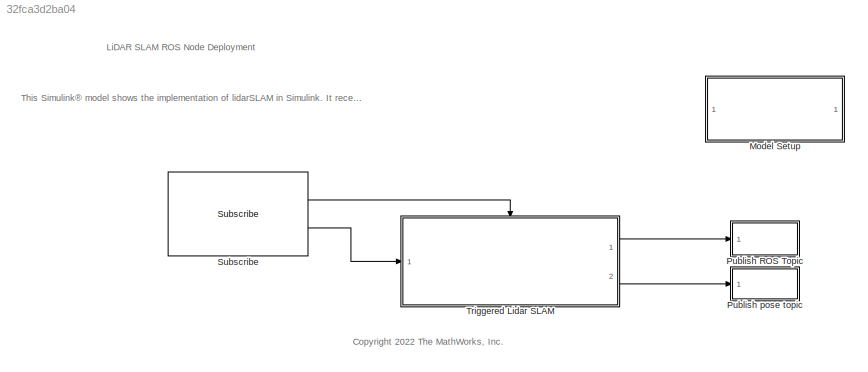
MODEL slx_32fca3d2ba04
KIND model
CONFIG AbsTol = auto
CONFIG EnableMultiTasking = off
CONFIG FixedStep = auto
CONFIG MaxStep = auto
CONFIG MinStep = auto
CONFIG RelTol = 1e-3
CONFIG SampleTimeConstraint = Unconstrained
CONFIG SolverName = FixedStepAuto
CONFIG StartTime = 0.0
CONFIG StopTime = inf
WORKSPACE source: mxarray member
WORKSPACE SL_ROS_VariableLengthArrays_MaxSizes: object (value not decoded)
BLOCK [SubSystem] Model Setup
  Ports = []
  RequestExecContextInheritance = off
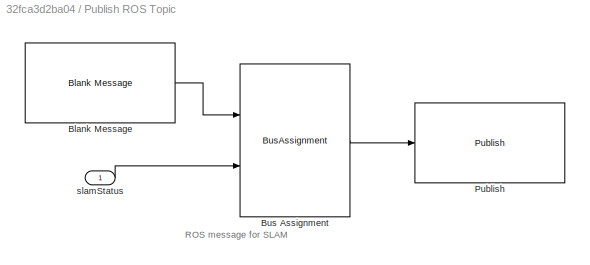
BLOCK [SubSystem] Publish ROS Topic
  Ports = [1]
  RequestExecContextInheritance = off
BLOCK [Reference] Publish ROS Topic/Blank Message  REF=robotlib/Blank Message
  Ports = [0, 1]
  SourceBlock = robotlib/Blank Message
  SourceProductBaseCode = RR
  SourceType = ROS Blank Message
BLOCK [BusAssignment] Publish ROS Topic/Bus Assignment
  AssignedSignals = Data
  Ports = [2, 1]
BLOCK [Reference] Publish ROS Topic/Publish  REF=robotlib/Publish
  Ports = [1]
  SourceBlock = robotlib/Publish
  SourceProductBaseCode = RR
  SourceType = ROS Publish
BLOCK [Inport] Publish ROS Topic/slamStatus
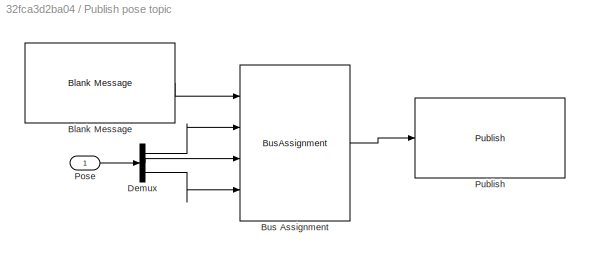
BLOCK [SubSystem] Publish pose topic
  Ports = [1]
  RequestExecContextInheritance = off
BLOCK [Reference] Publish pose topic/Blank Message  REF=robotlib/Blank Message
  Ports = [0, 1]
  SourceBlock = robotlib/Blank Message
  SourceProductBaseCode = RR
  SourceType = ROS Blank Message
BLOCK [BusAssignment] Publish pose topic/Bus Assignment
  AssignedSignals = X,Y,Theta
  Ports = [4, 1]
BLOCK [Demux] Publish pose topic/Demux
  Outputs = 3
  Ports = [1, 3]
BLOCK [Inport] Publish pose topic/Pose
  NameLocation = top
BLOCK [Reference] Publish pose topic/Publish  REF=robotlib/Publish
  Ports = [1]
  SourceBlock = robotlib/Publish
  SourceProductBaseCode = RR
  SourceType = ROS Publish
BLOCK [Reference] Subscribe  REF=robotlib/Subscribe
  Ports = [0, 2]
  SourceBlock = robotlib/Subscribe
  SourceProductBaseCode = RR
  SourceType = ROS Subscribe
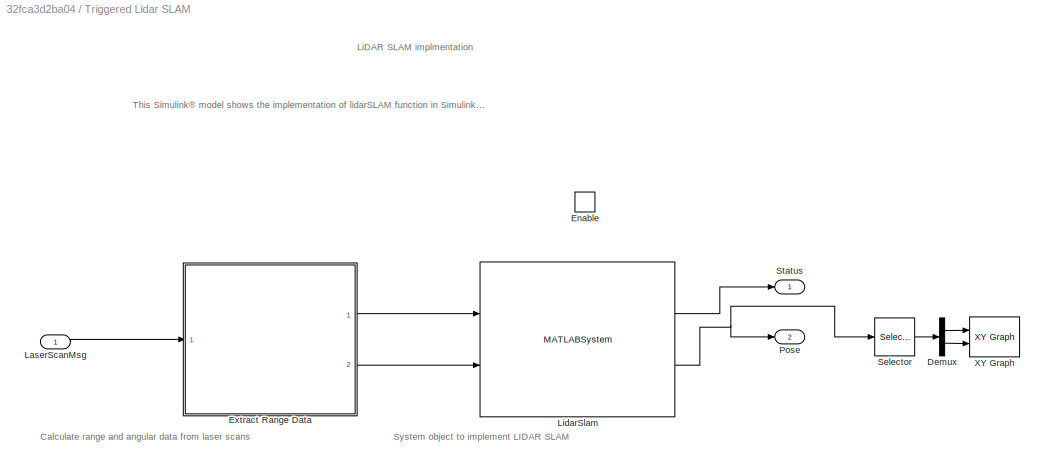
BLOCK [SubSystem] Triggered Lidar SLAM
  Ports = [1, 2, 1]
  RequestExecContextInheritance = off
BLOCK [Demux] Triggered Lidar SLAM/Demux
  Outputs = 2
  Ports = [1, 2]
BLOCK [EnablePort] Triggered Lidar SLAM/Enable
  Ports = []
  PropagateVarSize = During execution
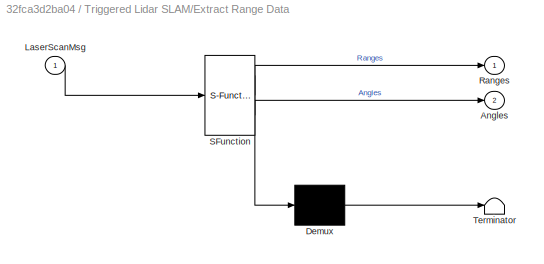
BLOCK [SubSystem] Triggered Lidar SLAM/Extract Range Data
  ErrorFcn = Stateflow.Translate.translate
  PermitHierarchicalResolution = ExplicitOnly
  Ports = [1, 2]
  RequestExecContextInheritance = off
  SFBlockType = MATLAB Function
  TreatAsAtomicUnit = on
BLOCK [Demux] Triggered Lidar SLAM/Extract Range Data/ Demux 
  Outputs = 1
  Ports = [1, 1]
BLOCK [S-Function] Triggered Lidar SLAM/Extract Range Data/ SFunction 
  EnableBusSupport = off
  FunctionName = sf_sfun
  PortCounts = [1 3]
  Ports = [1, 3]
  SFcnIsStateOwnerBlock = off
  SFunctionDeploymentMode = off
  Tag = Stateflow S-Function 5
BLOCK [Terminator] Triggered Lidar SLAM/Extract Range Data/ Terminator 
BLOCK [Outport] Triggered Lidar SLAM/Extract Range Data/Angles
  Port = 2
  VectorParamsAs1DForOutWhenUnconnected = off
BLOCK [Inport] Triggered Lidar SLAM/Extract Range Data/LaserScanMsg
BLOCK [Outport] Triggered Lidar SLAM/Extract Range Data/Ranges
  VectorParamsAs1DForOutWhenUnconnected = off
BLOCK [Inport] Triggered Lidar SLAM/LaserScanMsg
  NameLocation = top
BLOCK [MATLABSystem] Triggered Lidar SLAM/LidarSlam
  MaskDisplay = disp('LidarSlam');\nport_label('input',1,'ranges');\nport_label('input',2,'angles');\nport_label('output',1,'slamStatus');\nport_label('output',2,'pose');
  MaskType = LidarSlam
  Ports = [2, 2]
  SimulateUsing = Code generation
  System = LidarSlam
BLOCK [Outport] Triggered Lidar SLAM/Pose
  Port = 2
BLOCK [Selector] Triggered Lidar SLAM/Selector
  IndexOptions = Index vector (dialog)
  Indices = [1 2]
  InputPortWidth = 3
  OutputSizes = 1
  Ports = [1, 1]
BLOCK [Outport] Triggered Lidar SLAM/Status
BLOCK [Reference] Triggered Lidar SLAM/XY Graph  REF=simulink/Sinks/XY Graph
  Ports = [2]
  SourceBlock = simulink/Sinks/XY Graph
  SourceProductBaseCode = SL
  SourceType = XY scope.
ANNOTATION (root): This Simulink® model shows the implementation of lidarSLAM in Simulink. It receives as input Laser Scan data from a simulated turtlebot and uses the lidarSLAM object to determine robot position and generate a map
ANNOTATION (root): LiDAR SLAM ROS Node Deployment
ANNOTATION (root): <copyright redacted>
ANNOTATION Model Setup: Before running the Simulink model, make sure the ROS network requirements have been set appropriately through the Simulink Toolstrip. Note that setting a Node Host IP address is optional and depends on the computer setup.
ANNOTATION Model Setup: ROS Model Setup
ANNOTATION Publish ROS Topic: ROS message for SLAM
ANNOTATION Triggered Lidar SLAM: Calculate range and angular data from laser scans
ANNOTATION Triggered Lidar SLAM: System object to implement LIDAR SLAM
ANNOTATION Triggered Lidar SLAM: This Simulink® model shows the implementation of lidarSLAM function in Simulink. It takes in Laser Scan data from turtlebot and uses lidarSLAM function to generate a map
ANNOTATION Triggered Lidar SLAM: LiDAR SLAM implmentation
LINE Publish ROS Topic/Blank Message:1 -> Publish ROS Topic/Bus Assignment:1
LINE Publish ROS Topic/Bus Assignment:1 -> Publish ROS Topic/Publish:1
LINE Publish ROS Topic/slamStatus:1 -> Publish ROS Topic/Bus Assignment:2
LINE Publish pose topic/Blank Message:1 -> Publish pose topic/Bus Assignment:1
LINE Publish pose topic/Bus Assignment:1 -> Publish pose topic/Publish:1
LINE Publish pose topic/Demux:1 -> Publish pose topic/Bus Assignment:2
LINE Publish pose topic/Demux:2 -> Publish pose topic/Bus Assignment:3
LINE Publish pose topic/Demux:3 -> Publish pose topic/Bus Assignment:4
LINE Publish pose topic/Pose:1 -> Publish pose topic/Demux:1
LINE Subscribe:1 -> Triggered Lidar SLAM:enable
LINE Subscribe:2 -> Triggered Lidar SLAM:1
LINE Triggered Lidar SLAM/Demux:1 -> Triggered Lidar SLAM/XY Graph:1
LINE Triggered Lidar SLAM/Demux:2 -> Triggered Lidar SLAM/XY Graph:2
LINE Triggered Lidar SLAM/Extract Range Data:1 -> Triggered Lidar SLAM/LidarSlam:1
LINE Triggered Lidar SLAM/Extract Range Data:2 -> Triggered Lidar SLAM/LidarSlam:2
LINE Triggered Lidar SLAM/LaserScanMsg:1 -> Triggered Lidar SLAM/Extract Range Data:1
LINE Triggered Lidar SLAM/LidarSlam:1 -> Triggered Lidar SLAM/Status:1
NET Triggered Lidar SLAM/LidarSlam:2 -> Triggered Lidar SLAM/Pose:1, Triggered Lidar SLAM/Selector:1
LINE Triggered Lidar SLAM/Selector:1 -> Triggered Lidar SLAM/Demux:1
LINE Triggered Lidar SLAM:1 -> Publish ROS Topic:1
LINE Triggered Lidar SLAM:2 -> Publish pose topic:1
note: NET lines group one-source signal fan-out (src -> all destinations, sorted); 1:1 wires keep LINE
CHART Triggered Lidar SLAM/Extract Range Data states=1 transitions=1
  STATE_LABEL 'eML_blk_kernel()'
  STATE_LABEL "SCRIPT:\nfunction [Ranges, Angles] = ExtractRangeData(LaserScanMsg)\n%#codegen\n\n% Extract Range information\nRanges = double(LaserScanMsg.Ranges);\n\n% Construct Angles vector using AngleMin and AngleIncrement from sensor\n% reading.\nangMin = double(LaserScanMsg.AngleMin);\nangIncrement = double(LaserScanMsg.AngleIncrement);\n\nnumReadings = numel(Ranges);\nrawAngles = angMin + (0:numReadings-1)' * angIncre...<+106ch>"
CHART  states=0 transitions=0
